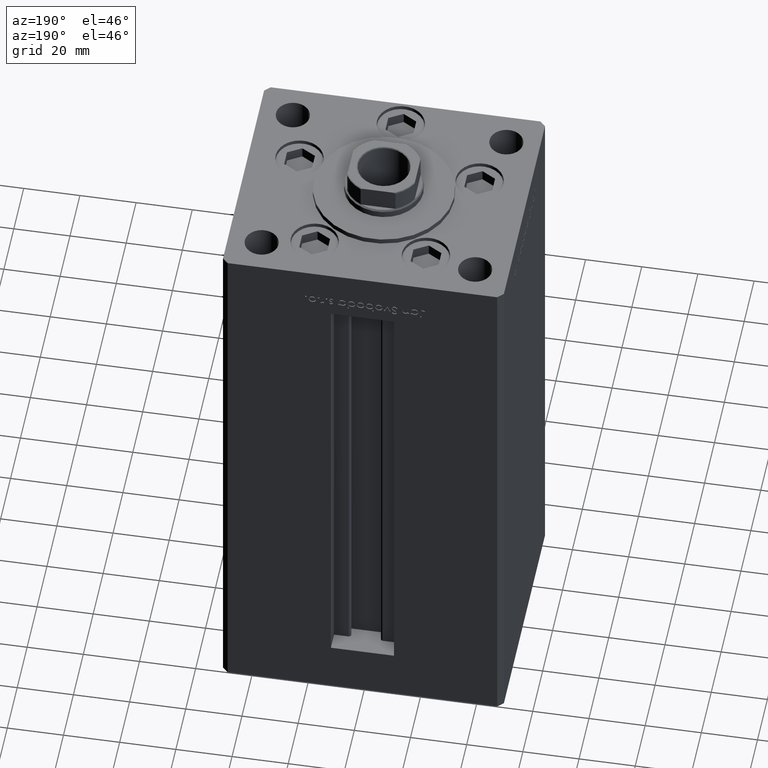
[diagram: clean part render]
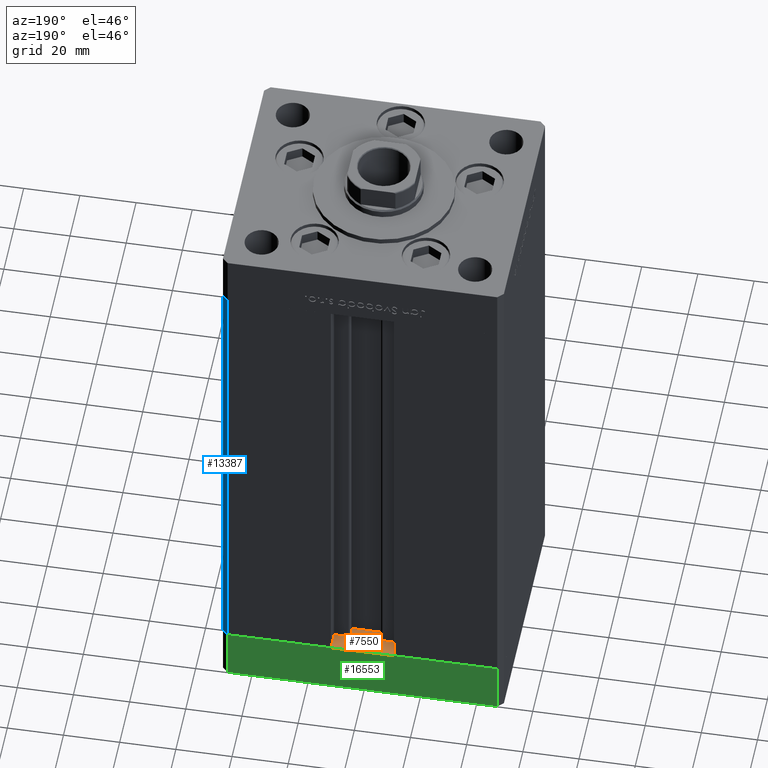
[diagram: same view with three faces highlighted in distinct colors, each labeled with its STEP entity id]
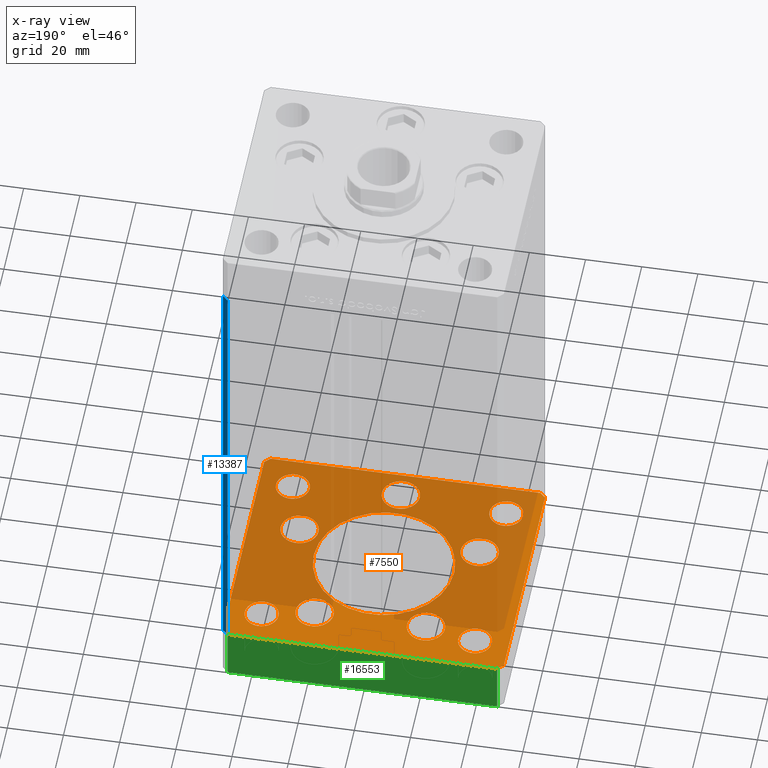
[diagram: x-ray of the same camera — body ghosted, the three highlighted faces saturated]
A machine part, auxiliary view with three faces highlighted in distinct colors.
The next image is the same camera in x-ray (body ghosted, the three faces saturated) — at least one of them is partly hidden behind the body in this view.
Their STEP definitions:

[orange] entity #7550 — the highlighted planar face has unit normal (0, 0, -1).
#826 = CIRCLE ( 'NONE', #46329, 5.999999999999998224 ) ;
#830 = DIRECTION ( 'NONE',  ( 0.000000000000000000, -0.000000000000000000, -1.000000000000000000 ) ) ;
#1073 = VERTEX_POINT ( 'NONE', #30625 ) ;
#1093 = CARTESIAN_POINT ( 'NONE',  ( 0.000000000000000000, 0.000000000000000000, -19.00000000000000000 ) ) ;
#1160 = LINE ( 'NONE', #37832, #22303 ) ;
#1414 = EDGE_CURVE ( 'NONE', #20562, #2774, #47705, .T. ) ;
#1551 = CIRCLE ( 'NONE', #25106, 6.749999999999999112 ) ;
#2182 = DIRECTION ( 'NONE',  ( -1.000000000000000000, 0.000000000000000000, 0.000000000000000000 ) ) ;
#2239 = CARTESIAN_POINT ( 'NONE',  ( 38.00000000000000000, -31.49999999999999289, -19.00000000000000000 ) ) ;
#2302 = ORIENTED_EDGE ( 'NONE', *, *, #50920, .F. ) ;
#2316 = CARTESIAN_POINT ( 'NONE',  ( 38.00000000000000000, 31.49999999999999289, -19.00000000000000000 ) ) ;
#2356 = CARTESIAN_POINT ( 'NONE',  ( -38.00000000000000000, 31.50000000000000000, -19.00000000000000000 ) ) ;
#2361 = CARTESIAN_POINT ( 'NONE',  ( 0.000000000000000000, 0.000000000000000000, -19.00000000000000000 ) ) ;
#2395 = DIRECTION ( 'NONE',  ( -1.000000000000000000, 0.000000000000000000, 0.000000000000000000 ) ) ;
#2538 = EDGE_CURVE ( 'NONE', #7839, #45222, #36003, .T. ) ;
#2558 = VECTOR ( 'NONE', #3669, 1000.000000000000000 ) ;
#2599 = DIRECTION ( 'NONE',  ( -1.000000000000000000, -3.614007241618350743E-16, 0.000000000000000000 ) ) ;
#2601 = AXIS2_PLACEMENT_3D ( 'NONE', #28510, #27466, #28245 ) ;
#2774 = VERTEX_POINT ( 'NONE', #14893 ) ;
#2953 = CIRCLE ( 'NONE', #48460, 6.749999999999999112 ) ;
#3669 = DIRECTION ( 'NONE',  ( -0.7071067811865463515, -0.7071067811865487940, 0.000000000000000000 ) ) ;
#4024 = CARTESIAN_POINT ( 'NONE',  ( -6.749999999999994671, -34.00000000000000000, -19.00000000000000000 ) ) ;
#4168 = ORIENTED_EDGE ( 'NONE', *, *, #21659, .F. ) ;
#4651 = CARTESIAN_POINT ( 'NONE',  ( 25.00000000000000000, 0.000000000000000000, -19.00000000000000000 ) ) ;
#4796 = EDGE_CURVE ( 'NONE', #44126, #31874, #23598, .T. ) ;
#4799 = EDGE_CURVE ( 'NONE', #38980, #43292, #1551, .T. ) ;
#4958 = AXIS2_PLACEMENT_3D ( 'NONE', #38078, #6919, #26437 ) ;
#5171 = DIRECTION ( 'NONE',  ( 1.000000000000000000, 0.000000000000000000, 0.000000000000000000 ) ) ;
#5272 = ORIENTED_EDGE ( 'NONE', *, *, #27028, .F. ) ;
#5364 = CIRCLE ( 'NONE', #51743, 5.999999999999998224 ) ;
#5798 = VERTEX_POINT ( 'NONE', #18319 ) ;
#5961 = DIRECTION ( 'NONE',  ( 0.000000000000000000, -0.000000000000000000, -1.000000000000000000 ) ) ;
#6046 = VERTEX_POINT ( 'NONE', #4024 ) ;
#6676 = ORIENTED_EDGE ( 'NONE', *, *, #36362, .F. ) ;
#6823 = CIRCLE ( 'NONE', #2601, 5.999999999999998224 ) ;
#6919 = DIRECTION ( 'NONE',  ( 0.000000000000000000, -0.000000000000000000, -1.000000000000000000 ) ) ;
#7089 = ORIENTED_EDGE ( 'NONE', *, *, #11710, .F. ) ;
#7101 = FACE_BOUND ( 'NONE', #13442, .T. ) ;
#7166 = ORIENTED_EDGE ( 'NONE', *, *, #21128, .T. ) ;
#7223 = DIRECTION ( 'NONE',  ( 0.000000000000000000, -0.000000000000000000, -1.000000000000000000 ) ) ;
#7336 = CARTESIAN_POINT ( 'NONE',  ( 47.99999999999990763, 43.50000000000000000, -19.00000000000000000 ) ) ;
#7378 = LINE ( 'NONE', #35596, #2558 ) ;
#7381 = CARTESIAN_POINT ( 'NONE',  ( -44.00000000000000000, 31.50000000000000000, -19.00000000000000000 ) ) ;
#7550 = ADVANCED_FACE ( 'NONE', ( #7101, #18202, #31101, #23175, #35316, #31363, #46436, #47474, #11321, #27389, #22398 ), #38513, .F. ) ;
#7839 = VERTEX_POINT ( 'NONE', #43440 ) ;
#8329 = AXIS2_PLACEMENT_3D ( 'NONE', #17759, #49950, #2182 ) ;
#8362 = CARTESIAN_POINT ( 'NONE',  ( -26.57068048781373903, 27.62499999999999645, -19.00000000000000000 ) ) ;
#8410 = ORIENTED_EDGE ( 'NONE', *, *, #33632, .F. ) ;
#8474 = CARTESIAN_POINT ( 'NONE',  ( -32.00000000000000000, 31.50000000000000000, -19.00000000000000000 ) ) ;
#8894 = EDGE_CURVE ( 'NONE', #23231, #20562, #51657, .T. ) ;
#8981 = VERTEX_POINT ( 'NONE', #4651 ) ;
#9012 = CIRCLE ( 'NONE', #46078, 25.00000000000000000 ) ;
#9363 = CARTESIAN_POINT ( 'NONE',  ( 6.750000000000003553, -34.00000000000000000, -19.00000000000000000 ) ) ;
#9897 = DIRECTION ( 'NONE',  ( -0.000000000000000000, -0.000000000000000000, -1.000000000000000000 ) ) ;
#9916 = CARTESIAN_POINT ( 'NONE',  ( -19.82068048781373903, 27.62499999999999645, -19.00000000000000000 ) ) ;
#10099 = CIRCLE ( 'NONE', #39590, 6.749999999999999112 ) ;
#10211 = VECTOR ( 'NONE', #12111, 1000.000000000000114 ) ;
#10461 = CIRCLE ( 'NONE', #48387, 5.999999999999998224 ) ;
#10463 = DIRECTION ( 'NONE',  ( 1.000000000000000000, 0.000000000000000000, 0.000000000000000000 ) ) ;
#10775 = CARTESIAN_POINT ( 'NONE',  ( -50.00000000000000711, 41.49999999999995026, -19.00000000000000000 ) ) ;
#10962 = CIRCLE ( 'NONE', #37048, 5.999999999999998224 ) ;
#11321 = FACE_OUTER_BOUND ( 'NONE', #30285, .T. ) ;
#11327 = DIRECTION ( 'NONE',  ( 1.000000000000000000, 0.000000000000000000, 0.000000000000000000 ) ) ;
#11398 = CARTESIAN_POINT ( 'NONE',  ( 32.00000000000000000, -31.49999999999999289, -19.00000000000000000 ) ) ;
#11547 = CARTESIAN_POINT ( 'NONE',  ( -47.99999999999999289, -43.50000000000001421, -19.00000000000000000 ) ) ;
#11573 = ORIENTED_EDGE ( 'NONE', *, *, #25022, .F. ) ;
#11658 = CARTESIAN_POINT ( 'NONE',  ( -13.07068048781373903, 27.62499999999999645, -19.00000000000000000 ) ) ;
#11710 = EDGE_CURVE ( 'NONE', #45222, #7839, #46259, .T. ) ;
#11726 = EDGE_CURVE ( 'NONE', #36609, #30551, #31068, .T. ) ;
#12111 = DIRECTION ( 'NONE',  ( -0.7071067811865474617, 0.7071067811865474617, 0.000000000000000000 ) ) ;
#12123 = EDGE_LOOP ( 'NONE', ( #6676, #50575 ) ) ;
#12137 = EDGE_CURVE ( 'NONE', #19944, #8981, #44564, .T. ) ;
#12872 = CIRCLE ( 'NONE', #25466, 6.749999999999999112 ) ;
#13097 = CARTESIAN_POINT ( 'NONE',  ( 32.05550741379015278, -11.33333333333333037, -19.00000000000000000 ) ) ;
#13350 = CARTESIAN_POINT ( 'NONE',  ( -47.99999999999999289, -43.50000000000001421, -19.00000000000000000 ) ) ;
#13403 = CARTESIAN_POINT ( 'NONE',  ( 0.000000000000000000, 0.000000000000000000, -19.00000000000000000 ) ) ;
#13442 = EDGE_LOOP ( 'NONE', ( #28371, #38217 ) ) ;
#14562 = VERTEX_POINT ( 'NONE', #30767 ) ;
#14741 = VERTEX_POINT ( 'NONE', #9363 ) ;
#14789 = EDGE_LOOP ( 'NONE', ( #4168, #24010 ) ) ;
#14893 = CARTESIAN_POINT ( 'NONE',  ( 50.00000000000000000, -41.49999999999999289, -19.00000000000000000 ) ) ;
#15028 = DIRECTION ( 'NONE',  ( 0.000000000000000000, 0.000000000000000000, 1.000000000000000000 ) ) ;
#15195 = CARTESIAN_POINT ( 'NONE',  ( -50.00000000000000711, 41.49999999999995026, -19.00000000000000000 ) ) ;
#16687 = CARTESIAN_POINT ( 'NONE',  ( 32.05550741379015278, -11.33333333333333037, -19.00000000000000000 ) ) ;
#16842 = EDGE_CURVE ( 'NONE', #43817, #46930, #6823, .T. ) ;
#16879 = ORIENTED_EDGE ( 'NONE', *, *, #50155, .F. ) ;
#17267 = AXIS2_PLACEMENT_3D ( 'NONE', #22782, #29192, #18841 ) ;
#17759 = CARTESIAN_POINT ( 'NONE',  ( 38.00000000000000000, -31.49999999999999289, -19.00000000000000000 ) ) ;
#17789 = CARTESIAN_POINT ( 'NONE',  ( 13.07068048781373015, 27.62500000000000000, -19.00000000000000000 ) ) ;
#17819 = DIRECTION ( 'NONE',  ( 0.000000000000000000, -0.000000000000000000, -1.000000000000000000 ) ) ;
#17923 = ORIENTED_EDGE ( 'NONE', *, *, #8894, .F. ) ;
#18202 = FACE_BOUND ( 'NONE', #30770, .T. ) ;
#18319 = CARTESIAN_POINT ( 'NONE',  ( 26.57068048781372838, 27.62500000000000000, -19.00000000000000000 ) ) ;
#18341 = DIRECTION ( 'NONE',  ( 1.000000000000000000, 0.000000000000000000, 0.000000000000000000 ) ) ;
#18408 = ORIENTED_EDGE ( 'NONE', *, *, #37639, .T. ) ;
#18467 = DIRECTION ( 'NONE',  ( -0.000000000000000000, 0.000000000000000000, 1.000000000000000000 ) ) ;
#18531 = EDGE_CURVE ( 'NONE', #43292, #38980, #12872, .T. ) ;
#18567 = VECTOR ( 'NONE', #31648, 1000.000000000000000 ) ;
#18841 = DIRECTION ( 'NONE',  ( 1.000000000000000000, 0.000000000000000000, 0.000000000000000000 ) ) ;
#18874 = EDGE_CURVE ( 'NONE', #14562, #1073, #33907, .T. ) ;
#19137 = DIRECTION ( 'NONE',  ( 8.360113137237628665E-17, -1.000000000000000000, 0.000000000000000000 ) ) ;
#19154 = CARTESIAN_POINT ( 'NONE',  ( -32.05550741379015278, -11.33333333333333925, -19.00000000000000000 ) ) ;
#19756 = DIRECTION ( 'NONE',  ( 0.000000000000000000, 0.000000000000000000, 1.000000000000000000 ) ) ;
#19900 = AXIS2_PLACEMENT_3D ( 'NONE', #13097, #37102, #5171 ) ;
#19944 = VERTEX_POINT ( 'NONE', #36150 ) ;
#20197 = CARTESIAN_POINT ( 'NONE',  ( 25.30550741379015278, -11.33333333333333037, -19.00000000000000000 ) ) ;
#20223 = CARTESIAN_POINT ( 'NONE',  ( 38.80550741379015278, -11.33333333333333037, -19.00000000000000000 ) ) ;
#20251 = CARTESIAN_POINT ( 'NONE',  ( 47.99999999999999289, -43.50000000000001421, -19.00000000000000000 ) ) ;
#20562 = VERTEX_POINT ( 'NONE', #40456 ) ;
#21128 = EDGE_CURVE ( 'NONE', #31613, #39031, #10962, .T. ) ;
#21375 = EDGE_LOOP ( 'NONE', ( #23158, #43603 ) ) ;
#21658 = EDGE_CURVE ( 'NONE', #30551, #36609, #826, .T. ) ;
#21659 = EDGE_CURVE ( 'NONE', #14741, #6046, #10099, .T. ) ;
#22137 = DIRECTION ( 'NONE',  ( 1.000000000000000000, 0.000000000000000000, 0.000000000000000000 ) ) ;
#22294 = DIRECTION ( 'NONE',  ( 1.000000000000000000, 0.000000000000000000, 0.000000000000000000 ) ) ;
#22303 = VECTOR ( 'NONE', #37570, 1000.000000000000114 ) ;
#22398 = FACE_BOUND ( 'NONE', #33191, .T. ) ;
#22414 = CIRCLE ( 'NONE', #19900, 6.749999999999999112 ) ;
#22782 = CARTESIAN_POINT ( 'NONE',  ( 4.163799117101000559E-15, -34.00000000000000000, -19.00000000000000000 ) ) ;
#22833 = EDGE_CURVE ( 'NONE', #29355, #44126, #7378, .T. ) ;
#23158 = ORIENTED_EDGE ( 'NONE', *, *, #4799, .F. ) ;
#23175 = FACE_BOUND ( 'NONE', #30939, .T. ) ;
#23208 = CARTESIAN_POINT ( 'NONE',  ( -37.99999999999999289, -31.50000000000000000, -19.00000000000000000 ) ) ;
#23231 = VERTEX_POINT ( 'NONE', #13350 ) ;
#23598 = LINE ( 'NONE', #15195, #28498 ) ;
#23726 = CARTESIAN_POINT ( 'NONE',  ( 50.00000000000000000, -41.49999999999999289, -19.00000000000000000 ) ) ;
#24010 = ORIENTED_EDGE ( 'NONE', *, *, #46682, .F. ) ;
#24346 = AXIS2_PLACEMENT_3D ( 'NONE', #13403, #25518, #26563 ) ;
#24708 = AXIS2_PLACEMENT_3D ( 'NONE', #42795, #34865, #50971 ) ;
#25022 = EDGE_CURVE ( 'NONE', #36517, #25957, #48255, .T. ) ;
#25106 = AXIS2_PLACEMENT_3D ( 'NONE', #39723, #27042, #43153 ) ;
#25466 = AXIS2_PLACEMENT_3D ( 'NONE', #9916, #5961, #22294 ) ;
#25472 = CIRCLE ( 'NONE', #41499, 6.749999999999999112 ) ;
#25518 = DIRECTION ( 'NONE',  ( 0.000000000000000000, -0.000000000000000000, -1.000000000000000000 ) ) ;
#25808 = ORIENTED_EDGE ( 'NONE', *, *, #40834, .F. ) ;
#25957 = VERTEX_POINT ( 'NONE', #29034 ) ;
#26437 = DIRECTION ( 'NONE',  ( 1.000000000000000000, 0.000000000000000000, 0.000000000000000000 ) ) ;
#26489 = VECTOR ( 'NONE', #2599, 1000.000000000000000 ) ;
#26563 = DIRECTION ( 'NONE',  ( 1.000000000000000000, 0.000000000000000000, 0.000000000000000000 ) ) ;
#27028 = EDGE_CURVE ( 'NONE', #2774, #36517, #44063, .T. ) ;
#27042 = DIRECTION ( 'NONE',  ( 0.000000000000000000, -0.000000000000000000, -1.000000000000000000 ) ) ;
#27389 = FACE_BOUND ( 'NONE', #46875, .T. ) ;
#27466 = DIRECTION ( 'NONE',  ( 0.000000000000000000, 0.000000000000000000, 1.000000000000000000 ) ) ;
#27622 = DIRECTION ( 'NONE',  ( 0.7071067811865463515, 0.7071067811865487940, 0.000000000000000000 ) ) ;
#27631 = CARTESIAN_POINT ( 'NONE',  ( -48.00000000000000711, 43.49999999999996447, -19.00000000000000000 ) ) ;
#27814 = ORIENTED_EDGE ( 'NONE', *, *, #11726, .F. ) ;
#28057 = CIRCLE ( 'NONE', #24708, 6.749999999999999112 ) ;
#28245 = DIRECTION ( 'NONE',  ( 1.000000000000000000, 0.000000000000000000, 0.000000000000000000 ) ) ;
#28371 = ORIENTED_EDGE ( 'NONE', *, *, #51932, .F. ) ;
#28498 = VECTOR ( 'NONE', #19137, 1000.000000000000000 ) ;
#28510 = CARTESIAN_POINT ( 'NONE',  ( 38.00000000000000000, 31.49999999999999289, -19.00000000000000000 ) ) ;
#29034 = CARTESIAN_POINT ( 'NONE',  ( 47.99999999999990763, 43.50000000000000000, -19.00000000000000000 ) ) ;
#29192 = DIRECTION ( 'NONE',  ( 0.000000000000000000, -0.000000000000000000, -1.000000000000000000 ) ) ;
#29355 = VERTEX_POINT ( 'NONE', #27631 ) ;
#29461 = ORIENTED_EDGE ( 'NONE', *, *, #18874, .F. ) ;
#29905 = ORIENTED_EDGE ( 'NONE', *, *, #16842, .T. ) ;
#30285 = EDGE_LOOP ( 'NONE', ( #32906, #44622, #31170, #25808, #11573, #5272, #32474, #17923 ) ) ;
#30410 = DIRECTION ( 'NONE',  ( -1.000000000000000000, 0.000000000000000000, 0.000000000000000000 ) ) ;
#30457 = DIRECTION ( 'NONE',  ( -1.000000000000000000, 0.000000000000000000, 0.000000000000000000 ) ) ;
#30551 = VERTEX_POINT ( 'NONE', #11398 ) ;
#30625 = CARTESIAN_POINT ( 'NONE',  ( -31.99999999999998579, -31.50000000000000000, -19.00000000000000000 ) ) ;
#30767 = CARTESIAN_POINT ( 'NONE',  ( -44.00000000000000000, -31.50000000000000000, -19.00000000000000000 ) ) ;
#30770 = EDGE_LOOP ( 'NONE', ( #34586, #7089 ) ) ;
#30939 = EDGE_LOOP ( 'NONE', ( #8410, #2302 ) ) ;
#31068 = CIRCLE ( 'NONE', #8329, 5.999999999999998224 ) ;
#31101 = FACE_BOUND ( 'NONE', #14789, .T. ) ;
#31170 = ORIENTED_EDGE ( 'NONE', *, *, #22833, .F. ) ;
#31285 = DIRECTION ( 'NONE',  ( 0.000000000000000000, -0.000000000000000000, -1.000000000000000000 ) ) ;
#31363 = FACE_BOUND ( 'NONE', #21375, .T. ) ;
#31390 = AXIS2_PLACEMENT_3D ( 'NONE', #23208, #42763, #2395 ) ;
#31613 = VERTEX_POINT ( 'NONE', #7381 ) ;
#31648 = DIRECTION ( 'NONE',  ( -1.003213576468515193E-15, 1.000000000000000000, 0.000000000000000000 ) ) ;
#31874 = VERTEX_POINT ( 'NONE', #35267 ) ;
#32474 = ORIENTED_EDGE ( 'NONE', *, *, #1414, .F. ) ;
#32906 = ORIENTED_EDGE ( 'NONE', *, *, #40480, .F. ) ;
#33191 = EDGE_LOOP ( 'NONE', ( #16879, #29461 ) ) ;
#33294 = VERTEX_POINT ( 'NONE', #17789 ) ;
#33632 = EDGE_CURVE ( 'NONE', #51336, #41977, #25472, .T. ) ;
#33907 = CIRCLE ( 'NONE', #31390, 6.000000000000005329 ) ;
#34159 = CARTESIAN_POINT ( 'NONE',  ( 4.163799117101000559E-15, -34.00000000000000000, -19.00000000000000000 ) ) ;
#34236 = DIRECTION ( 'NONE',  ( 0.000000000000000000, 0.000000000000000000, 1.000000000000000000 ) ) ;
#34461 = CARTESIAN_POINT ( 'NONE',  ( -38.80550741379015278, -11.33333333333333925, -19.00000000000000000 ) ) ;
#34547 = DIRECTION ( 'NONE',  ( 1.000000000000000000, 0.000000000000000000, 0.000000000000000000 ) ) ;
#34586 = ORIENTED_EDGE ( 'NONE', *, *, #2538, .F. ) ;
#34799 = CARTESIAN_POINT ( 'NONE',  ( 44.00000000000000000, -31.49999999999999289, -19.00000000000000000 ) ) ;
#34865 = DIRECTION ( 'NONE',  ( 0.000000000000000000, -0.000000000000000000, -1.000000000000000000 ) ) ;
#35075 = AXIS2_PLACEMENT_3D ( 'NONE', #47302, #42301, #30410 ) ;
#35267 = CARTESIAN_POINT ( 'NONE',  ( -50.00000000000000000, -41.50000000000000000, -19.00000000000000000 ) ) ;
#35316 = FACE_BOUND ( 'NONE', #12123, .T. ) ;
#35322 = AXIS2_PLACEMENT_3D ( 'NONE', #2361, #18467, #34547 ) ;
#35596 = CARTESIAN_POINT ( 'NONE',  ( -48.00000000000000711, 43.49999999999996447, -19.00000000000000000 ) ) ;
#36003 = CIRCLE ( 'NONE', #42766, 6.749999999999999112 ) ;
#36150 = CARTESIAN_POINT ( 'NONE',  ( -25.00000000000000000, 3.061616997868382254E-15, -19.00000000000000000 ) ) ;
#36362 = EDGE_CURVE ( 'NONE', #5798, #33294, #28057, .T. ) ;
#36517 = VERTEX_POINT ( 'NONE', #42726 ) ;
#36609 = VERTEX_POINT ( 'NONE', #34799 ) ;
#36716 = DIRECTION ( 'NONE',  ( 1.000000000000000000, 0.000000000000000000, 0.000000000000000000 ) ) ;
#36906 = VECTOR ( 'NONE', #43732, 1000.000000000000000 ) ;
#37048 = AXIS2_PLACEMENT_3D ( 'NONE', #2356, #15028, #22137 ) ;
#37102 = DIRECTION ( 'NONE',  ( 0.000000000000000000, -0.000000000000000000, -1.000000000000000000 ) ) ;
#37570 = DIRECTION ( 'NONE',  ( 0.7071067811865474617, -0.7071067811865474617, 0.000000000000000000 ) ) ;
#37639 = EDGE_CURVE ( 'NONE', #39031, #31613, #5364, .T. ) ;
#37686 = DIRECTION ( 'NONE',  ( 1.000000000000000000, 0.000000000000000000, 0.000000000000000000 ) ) ;
#37832 = CARTESIAN_POINT ( 'NONE',  ( -50.00000000000000000, -41.50000000000000000, -19.00000000000000000 ) ) ;
#38078 = CARTESIAN_POINT ( 'NONE',  ( -32.05550741379015278, -11.33333333333333925, -19.00000000000000000 ) ) ;
#38217 = ORIENTED_EDGE ( 'NONE', *, *, #12137, .F. ) ;
#38513 = PLANE ( 'NONE',  #35322 ) ;
#38980 = VERTEX_POINT ( 'NONE', #11658 ) ;
#39016 = LINE ( 'NONE', #7336, #26489 ) ;
#39031 = VERTEX_POINT ( 'NONE', #8474 ) ;
#39347 = ORIENTED_EDGE ( 'NONE', *, *, #21658, .F. ) ;
#39590 = AXIS2_PLACEMENT_3D ( 'NONE', #34159, #17819, #18341 ) ;
#39723 = CARTESIAN_POINT ( 'NONE',  ( -19.82068048781373903, 27.62499999999999645, -19.00000000000000000 ) ) ;
#39964 = EDGE_CURVE ( 'NONE', #46930, #43817, #10461, .T. ) ;
#40084 = CARTESIAN_POINT ( 'NONE',  ( -38.00000000000000000, 31.50000000000000000, -19.00000000000000000 ) ) ;
#40456 = CARTESIAN_POINT ( 'NONE',  ( 47.99999999999999289, -43.50000000000001421, -19.00000000000000000 ) ) ;
#40480 = EDGE_CURVE ( 'NONE', #31874, #23231, #1160, .T. ) ;
#40834 = EDGE_CURVE ( 'NONE', #25957, #29355, #39016, .T. ) ;
#41499 = AXIS2_PLACEMENT_3D ( 'NONE', #16687, #48870, #41739 ) ;
#41732 = CARTESIAN_POINT ( 'NONE',  ( 44.00000000000000000, 31.49999999999999289, -19.00000000000000000 ) ) ;
#41739 = DIRECTION ( 'NONE',  ( 1.000000000000000000, 0.000000000000000000, 0.000000000000000000 ) ) ;
#41977 = VERTEX_POINT ( 'NONE', #20197 ) ;
#42216 = EDGE_CURVE ( 'NONE', #33294, #5798, #2953, .T. ) ;
#42301 = DIRECTION ( 'NONE',  ( -0.000000000000000000, -0.000000000000000000, -1.000000000000000000 ) ) ;
#42726 = CARTESIAN_POINT ( 'NONE',  ( 49.99999999999992184, 41.49999999999998579, -19.00000000000000000 ) ) ;
#42763 = DIRECTION ( 'NONE',  ( -0.000000000000000000, -0.000000000000000000, -1.000000000000000000 ) ) ;
#42766 = AXIS2_PLACEMENT_3D ( 'NONE', #19154, #31285, #10463 ) ;
#42795 = CARTESIAN_POINT ( 'NONE',  ( 19.82068048781373193, 27.62500000000000000, -19.00000000000000000 ) ) ;
#43153 = DIRECTION ( 'NONE',  ( 1.000000000000000000, 0.000000000000000000, 0.000000000000000000 ) ) ;
#43292 = VERTEX_POINT ( 'NONE', #8362 ) ;
#43440 = CARTESIAN_POINT ( 'NONE',  ( -25.30550741379015278, -11.33333333333333925, -19.00000000000000000 ) ) ;
#43603 = ORIENTED_EDGE ( 'NONE', *, *, #18531, .F. ) ;
#43732 = DIRECTION ( 'NONE',  ( 1.000000000000000000, 0.000000000000000000, 0.000000000000000000 ) ) ;
#43817 = VERTEX_POINT ( 'NONE', #41732 ) ;
#44063 = LINE ( 'NONE', #23726, #18567 ) ;
#44126 = VERTEX_POINT ( 'NONE', #10775 ) ;
#44564 = CIRCLE ( 'NONE', #24346, 25.00000000000000000 ) ;
#44622 = ORIENTED_EDGE ( 'NONE', *, *, #4796, .F. ) ;
#45222 = VERTEX_POINT ( 'NONE', #34461 ) ;
#45523 = EDGE_LOOP ( 'NONE', ( #29905, #48243 ) ) ;
#46050 = CIRCLE ( 'NONE', #35075, 6.000000000000005329 ) ;
#46078 = AXIS2_PLACEMENT_3D ( 'NONE', #1093, #830, #36716 ) ;
#46259 = CIRCLE ( 'NONE', #4958, 6.749999999999999112 ) ;
#46329 = AXIS2_PLACEMENT_3D ( 'NONE', #2239, #9897, #30457 ) ;
#46436 = FACE_BOUND ( 'NONE', #45523, .T. ) ;
#46682 = EDGE_CURVE ( 'NONE', #6046, #14741, #51821, .T. ) ;
#46818 = CARTESIAN_POINT ( 'NONE',  ( 19.82068048781373193, 27.62500000000000000, -19.00000000000000000 ) ) ;
#46875 = EDGE_LOOP ( 'NONE', ( #27814, #39347 ) ) ;
#46930 = VERTEX_POINT ( 'NONE', #50192 ) ;
#47193 = EDGE_LOOP ( 'NONE', ( #18408, #7166 ) ) ;
#47302 = CARTESIAN_POINT ( 'NONE',  ( -37.99999999999999289, -31.50000000000000000, -19.00000000000000000 ) ) ;
#47474 = FACE_BOUND ( 'NONE', #47193, .T. ) ;
#47705 = LINE ( 'NONE', #20251, #47770 ) ;
#47770 = VECTOR ( 'NONE', #27622, 1000.000000000000000 ) ;
#48243 = ORIENTED_EDGE ( 'NONE', *, *, #39964, .T. ) ;
#48255 = LINE ( 'NONE', #48763, #10211 ) ;
#48387 = AXIS2_PLACEMENT_3D ( 'NONE', #2316, #34236, #37686 ) ;
#48460 = AXIS2_PLACEMENT_3D ( 'NONE', #46818, #7223, #50512 ) ;
#48763 = CARTESIAN_POINT ( 'NONE',  ( 49.99999999999992184, 41.49999999999998579, -19.00000000000000000 ) ) ;
#48870 = DIRECTION ( 'NONE',  ( 0.000000000000000000, -0.000000000000000000, -1.000000000000000000 ) ) ;
#49950 = DIRECTION ( 'NONE',  ( -0.000000000000000000, -0.000000000000000000, -1.000000000000000000 ) ) ;
#50155 = EDGE_CURVE ( 'NONE', #1073, #14562, #46050, .T. ) ;
#50192 = CARTESIAN_POINT ( 'NONE',  ( 32.00000000000000000, 31.49999999999999289, -19.00000000000000000 ) ) ;
#50512 = DIRECTION ( 'NONE',  ( 1.000000000000000000, 0.000000000000000000, 0.000000000000000000 ) ) ;
#50575 = ORIENTED_EDGE ( 'NONE', *, *, #42216, .F. ) ;
#50920 = EDGE_CURVE ( 'NONE', #41977, #51336, #22414, .T. ) ;
#50971 = DIRECTION ( 'NONE',  ( 1.000000000000000000, 0.000000000000000000, 0.000000000000000000 ) ) ;
#51336 = VERTEX_POINT ( 'NONE', #20223 ) ;
#51657 = LINE ( 'NONE', #11547, #36906 ) ;
#51743 = AXIS2_PLACEMENT_3D ( 'NONE', #40084, #19756, #11327 ) ;
#51821 = CIRCLE ( 'NONE', #17267, 6.749999999999999112 ) ;
#51932 = EDGE_CURVE ( 'NONE', #8981, #19944, #9012, .T. ) ;

[blue] entity #13387 — the highlighted planar face has unit normal (0.7071, 0.7071, 0).
#2786 = EDGE_CURVE ( 'NONE', #27970, #20981, #27766, .T. ) ;
#3520 = CARTESIAN_POINT ( 'NONE',  ( 48.00000000000000711, 43.50000000000000000, 168.5000000000000000 ) ) ;
#4321 = CARTESIAN_POINT ( 'NONE',  ( 48.00000000000000711, 43.50000000000000000, 168.5000000000000000 ) ) ;
#8171 = CARTESIAN_POINT ( 'NONE',  ( 50.00000000000001421, 41.49999999999999289, 168.5000000000000000 ) ) ;
#10071 = DIRECTION ( 'NONE',  ( -0.000000000000000000, -0.000000000000000000, -1.000000000000000000 ) ) ;
#12228 = LINE ( 'NONE', #3520, #13049 ) ;
#12514 = PLANE ( 'NONE',  #19328 ) ;
#13049 = VECTOR ( 'NONE', #47849, 1000.000000000000000 ) ;
#13387 = ADVANCED_FACE ( 'NONE', ( #40229 ), #12514, .T. ) ;
#13841 = VERTEX_POINT ( 'NONE', #48161 ) ;
#14563 = CARTESIAN_POINT ( 'NONE',  ( 48.00000000000000711, 43.50000000000000000, 168.5000000000000000 ) ) ;
#15575 = LINE ( 'NONE', #8171, #43959 ) ;
#16636 = ORIENTED_EDGE ( 'NONE', *, *, #27010, .T. ) ;
#17954 = ORIENTED_EDGE ( 'NONE', *, *, #46713, .T. ) ;
#19328 = AXIS2_PLACEMENT_3D ( 'NONE', #4321, #28582, #25136 ) ;
#20981 = VERTEX_POINT ( 'NONE', #33238 ) ;
#21309 = ORIENTED_EDGE ( 'NONE', *, *, #2786, .F. ) ;
#22843 = VERTEX_POINT ( 'NONE', #40860 ) ;
#24075 = DIRECTION ( 'NONE',  ( 0.7071067811865487940, -0.7071067811865463515, 0.000000000000000000 ) ) ;
#24912 = EDGE_LOOP ( 'NONE', ( #21309, #39541, #17954, #16636 ) ) ;
#25136 = DIRECTION ( 'NONE',  ( -0.7071067811865487940, 0.7071067811865463515, 0.000000000000000000 ) ) ;
#27010 = EDGE_CURVE ( 'NONE', #13841, #20981, #15575, .T. ) ;
#27766 = LINE ( 'NONE', #48106, #45274 ) ;
#27970 = VERTEX_POINT ( 'NONE', #48608 ) ;
#28582 = DIRECTION ( 'NONE',  ( 0.7071067811865463515, 0.7071067811865487940, -0.000000000000000000 ) ) ;
#33238 = CARTESIAN_POINT ( 'NONE',  ( 50.00000000000001421, 41.49999999999999289, 0.000000000000000000 ) ) ;
#33803 = EDGE_CURVE ( 'NONE', #22843, #27970, #35101, .T. ) ;
#35101 = LINE ( 'NONE', #14563, #38149 ) ;
#38149 = VECTOR ( 'NONE', #10071, 1000.000000000000000 ) ;
#39541 = ORIENTED_EDGE ( 'NONE', *, *, #33803, .F. ) ;
#40229 = FACE_OUTER_BOUND ( 'NONE', #24912, .T. ) ;
#40860 = CARTESIAN_POINT ( 'NONE',  ( 48.00000000000000711, 43.50000000000000000, 168.5000000000000000 ) ) ;
#43959 = VECTOR ( 'NONE', #48534, 1000.000000000000000 ) ;
#45274 = VECTOR ( 'NONE', #24075, 1000.000000000000000 ) ;
#46713 = EDGE_CURVE ( 'NONE', #22843, #13841, #12228, .T. ) ;
#47849 = DIRECTION ( 'NONE',  ( 0.7071067811865487940, -0.7071067811865463515, 0.000000000000000000 ) ) ;
#48106 = CARTESIAN_POINT ( 'NONE',  ( 48.00000000000000711, 43.50000000000000000, 0.000000000000000000 ) ) ;
#48161 = CARTESIAN_POINT ( 'NONE',  ( 50.00000000000001421, 41.49999999999999289, 168.5000000000000000 ) ) ;
#48534 = DIRECTION ( 'NONE',  ( -0.000000000000000000, -0.000000000000000000, -1.000000000000000000 ) ) ;
#48608 = CARTESIAN_POINT ( 'NONE',  ( 48.00000000000000711, 43.50000000000000000, 0.000000000000000000 ) ) ;

[green] entity #16553 — the highlighted planar face has unit normal (0, 1, 0).
#1134 = CARTESIAN_POINT ( 'NONE',  ( 47.99999999999990763, 43.50000000000000000, 0.000000000000000000 ) ) ;
#2396 = CARTESIAN_POINT ( 'NONE',  ( -48.00000000000000711, 43.49999999999996447, 0.000000000000000000 ) ) ;
#2599 = DIRECTION ( 'NONE',  ( -1.000000000000000000, -3.614007241618350743E-16, 0.000000000000000000 ) ) ;
#4100 = VERTEX_POINT ( 'NONE', #2396 ) ;
#7336 = CARTESIAN_POINT ( 'NONE',  ( 47.99999999999990763, 43.50000000000000000, -19.00000000000000000 ) ) ;
#8281 = DIRECTION ( 'NONE',  ( 0.000000000000000000, 0.000000000000000000, 1.000000000000000000 ) ) ;
#13537 = AXIS2_PLACEMENT_3D ( 'NONE', #24344, #20662, #40215 ) ;
#14149 = ORIENTED_EDGE ( 'NONE', *, *, #34166, .F. ) ;
#16553 = ADVANCED_FACE ( 'NONE', ( #24604 ), #23837, .T. ) ;
#16758 = DIRECTION ( 'NONE',  ( -1.000000000000000000, -3.614007241618350743E-16, 0.000000000000000000 ) ) ;
#19581 = VECTOR ( 'NONE', #16758, 1000.000000000000000 ) ;
#20662 = DIRECTION ( 'NONE',  ( -3.614007241618350743E-16, 1.000000000000000000, 0.000000000000000000 ) ) ;
#22018 = VECTOR ( 'NONE', #8281, 1000.000000000000000 ) ;
#22716 = EDGE_LOOP ( 'NONE', ( #14149, #30998, #34791, #23055 ) ) ;
#23055 = ORIENTED_EDGE ( 'NONE', *, *, #25461, .T. ) ;
#23612 = EDGE_CURVE ( 'NONE', #25957, #51149, #35085, .T. ) ;
#23837 = PLANE ( 'NONE',  #13537 ) ;
#24344 = CARTESIAN_POINT ( 'NONE',  ( 47.99999999999990763, 43.50000000000000000, -19.00000000000000000 ) ) ;
#24604 = FACE_OUTER_BOUND ( 'NONE', #22716, .T. ) ;
#25461 = EDGE_CURVE ( 'NONE', #29355, #4100, #27791, .T. ) ;
#25957 = VERTEX_POINT ( 'NONE', #29034 ) ;
#26489 = VECTOR ( 'NONE', #2599, 1000.000000000000000 ) ;
#27631 = CARTESIAN_POINT ( 'NONE',  ( -48.00000000000000711, 43.49999999999996447, -19.00000000000000000 ) ) ;
#27791 = LINE ( 'NONE', #39963, #22018 ) ;
#28348 = LINE ( 'NONE', #35761, #19581 ) ;
#29034 = CARTESIAN_POINT ( 'NONE',  ( 47.99999999999990763, 43.50000000000000000, -19.00000000000000000 ) ) ;
#29355 = VERTEX_POINT ( 'NONE', #27631 ) ;
#30998 = ORIENTED_EDGE ( 'NONE', *, *, #23612, .F. ) ;
#31127 = DIRECTION ( 'NONE',  ( 0.000000000000000000, 0.000000000000000000, 1.000000000000000000 ) ) ;
#34166 = EDGE_CURVE ( 'NONE', #51149, #4100, #28348, .T. ) ;
#34791 = ORIENTED_EDGE ( 'NONE', *, *, #40834, .T. ) ;
#35085 = LINE ( 'NONE', #51718, #37970 ) ;
#35761 = CARTESIAN_POINT ( 'NONE',  ( 47.99999999999990763, 43.50000000000000000, 0.000000000000000000 ) ) ;
#37970 = VECTOR ( 'NONE', #31127, 1000.000000000000000 ) ;
#39016 = LINE ( 'NONE', #7336, #26489 ) ;
#39963 = CARTESIAN_POINT ( 'NONE',  ( -48.00000000000000711, 43.49999999999996447, -19.00000000000000000 ) ) ;
#40215 = DIRECTION ( 'NONE',  ( -1.000000000000000000, -3.614007241618350743E-16, 0.000000000000000000 ) ) ;
#40834 = EDGE_CURVE ( 'NONE', #25957, #29355, #39016, .T. ) ;
#51149 = VERTEX_POINT ( 'NONE', #1134 ) ;
#51718 = CARTESIAN_POINT ( 'NONE',  ( 47.99999999999990763, 43.50000000000000000, -19.00000000000000000 ) ) ;